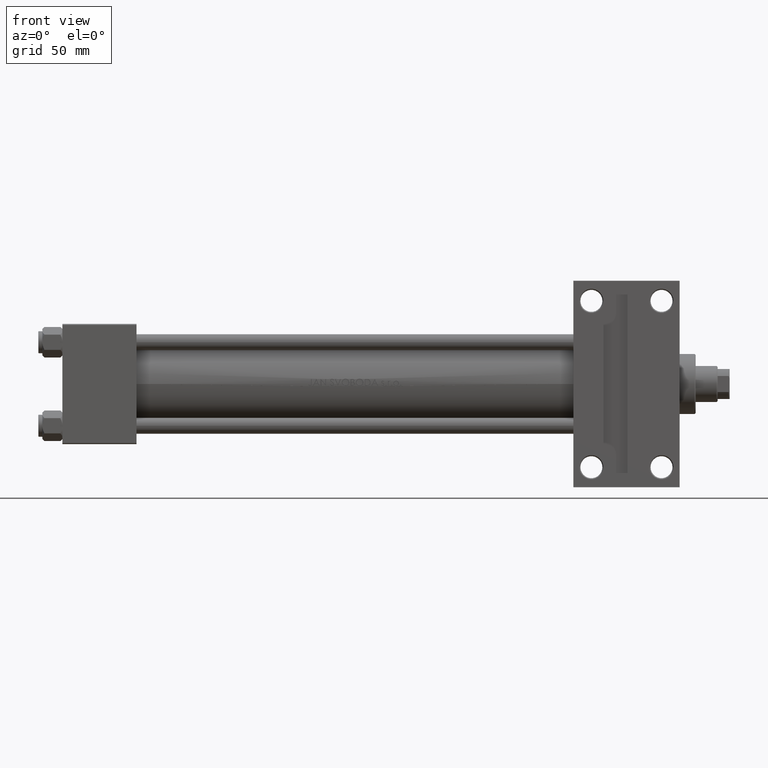
[diagram: clean part render]
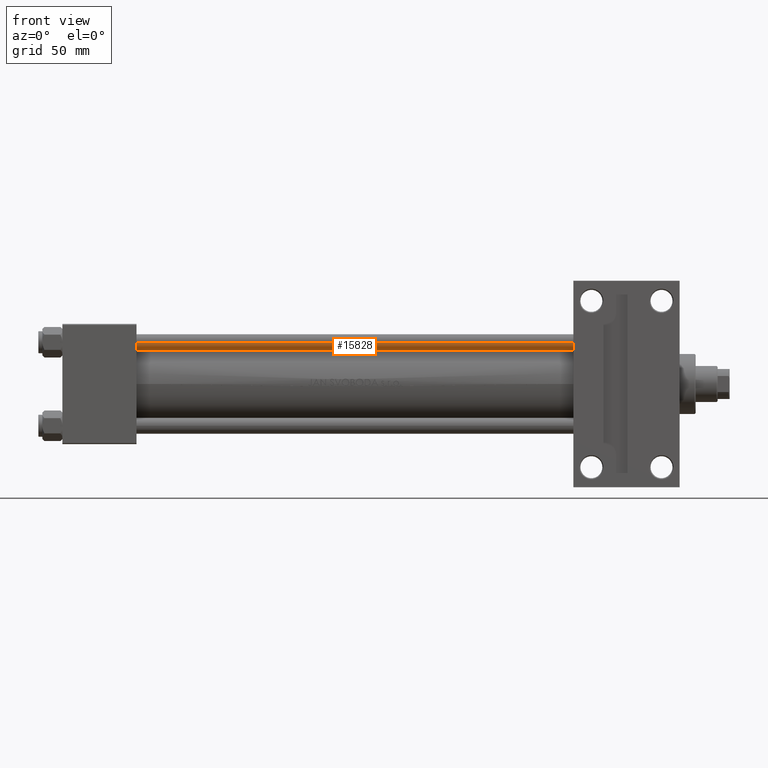
[diagram: same view with one face highlighted and labeled with its STEP entity id]
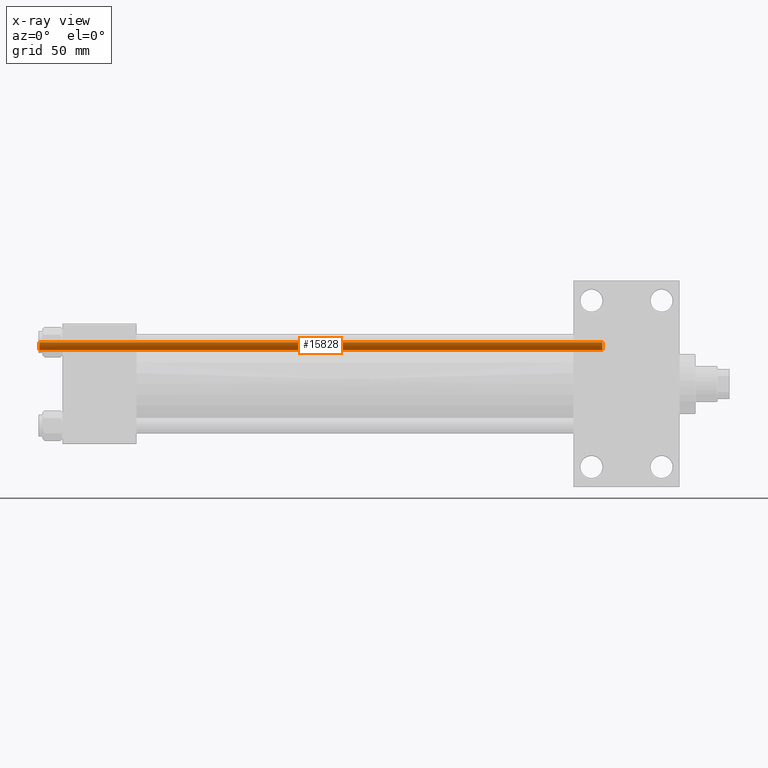
[diagram: x-ray of the same camera — body ghosted, the highlighted face saturated]
A machine part, front view. The second image highlights one B-rep face of the part: STEP entity #15828.
The next image is the same camera in x-ray: the body ghosted, the highlighted face saturated — about 0% of this face is hidden behind the body in this view.
In plain terms, the highlighted cylindrical surface (edge-blend (fillet) strip) has radius 4 mm, axis along (-1, 0, 0).
Its self-contained STEP definition (entity closure, byte-faithful):
#1460 = DIRECTION ( 'NONE',  ( 1.000000000000000000, 0.000000000000000000, 0.000000000000000000 ) ) ;
#2012 = VECTOR ( 'NONE', #28932, 1000.000000000000000 ) ;
#8051 = VERTEX_POINT ( 'NONE', #27177 ) ;
#8538 = CARTESIAN_POINT ( 'NONE',  ( 4.000000000000000000, 4.898587196589412829E-16, 281.5000000000000000 ) ) ;
#8824 = ORIENTED_EDGE ( 'NONE', *, *, #22101, .T. ) ;
#9134 = ORIENTED_EDGE ( 'NONE', *, *, #17937, .F. ) ;
#11052 = DIRECTION ( 'NONE',  ( -0.000000000000000000, -0.000000000000000000, -1.000000000000000000 ) ) ;
#13973 = CARTESIAN_POINT ( 'NONE',  ( -4.000000000000000000, 0.000000000000000000, 0.5000000000000559552 ) ) ;
#14753 = CARTESIAN_POINT ( 'NONE',  ( 0.000000000000000000, 0.000000000000000000, 282.0000000000000000 ) ) ;
#15828 = ADVANCED_FACE ( 'NONE', ( #44590 ), #22137, .T. ) ;
#17831 = LINE ( 'NONE', #25230, #2012 ) ;
#17937 = EDGE_CURVE ( 'NONE', #8051, #32412, #20787, .T. ) ;
#20174 = DIRECTION ( 'NONE',  ( -0.000000000000000000, -0.000000000000000000, 1.000000000000000000 ) ) ;
#20787 = LINE ( 'NONE', #35848, #37940 ) ;
#20835 = VERTEX_POINT ( 'NONE', #26588 ) ;
#22101 = EDGE_CURVE ( 'NONE', #20835, #32412, #28486, .T. ) ;
#22137 = CYLINDRICAL_SURFACE ( 'NONE', #25274, 4.000000000000000000 ) ;
#25230 = CARTESIAN_POINT ( 'NONE',  ( 4.000000000000000000, 4.898587196589412829E-16, 282.0000000000000000 ) ) ;
#25274 = AXIS2_PLACEMENT_3D ( 'NONE', #14753, #11052, #26063 ) ;
#26063 = DIRECTION ( 'NONE',  ( -1.000000000000000000, 0.000000000000000000, 0.000000000000000000 ) ) ;
#26588 = CARTESIAN_POINT ( 'NONE',  ( 4.000000000000000000, 4.898587196589412829E-16, 0.5000000000000559552 ) ) ;
#27122 = AXIS2_PLACEMENT_3D ( 'NONE', #46377, #39225, #31566 ) ;
#27177 = CARTESIAN_POINT ( 'NONE',  ( -4.000000000000000000, 0.000000000000000000, 281.5000000000000000 ) ) ;
#27216 = EDGE_CURVE ( 'NONE', #8051, #42656, #42074, .T. ) ;
#28486 = CIRCLE ( 'NONE', #34814, 4.000000000000000000 ) ;
#28932 = DIRECTION ( 'NONE',  ( -0.000000000000000000, -0.000000000000000000, -1.000000000000000000 ) ) ;
#31566 = DIRECTION ( 'NONE',  ( 1.000000000000000000, 0.000000000000000000, 0.000000000000000000 ) ) ;
#32389 = DIRECTION ( 'NONE',  ( -0.000000000000000000, -0.000000000000000000, -1.000000000000000000 ) ) ;
#32412 = VERTEX_POINT ( 'NONE', #13973 ) ;
#33501 = ORIENTED_EDGE ( 'NONE', *, *, #45645, .T. ) ;
#34814 = AXIS2_PLACEMENT_3D ( 'NONE', #39167, #20174, #1460 ) ;
#35317 = EDGE_LOOP ( 'NONE', ( #37739, #33501, #8824, #9134 ) ) ;
#35848 = CARTESIAN_POINT ( 'NONE',  ( -4.000000000000000000, 0.000000000000000000, 282.0000000000000000 ) ) ;
#37739 = ORIENTED_EDGE ( 'NONE', *, *, #27216, .T. ) ;
#37940 = VECTOR ( 'NONE', #32389, 1000.000000000000000 ) ;
#39167 = CARTESIAN_POINT ( 'NONE',  ( 0.000000000000000000, 0.000000000000000000, 0.5000000000000559552 ) ) ;
#39225 = DIRECTION ( 'NONE',  ( 0.000000000000000000, 0.000000000000000000, -1.000000000000000000 ) ) ;
#42074 = CIRCLE ( 'NONE', #27122, 4.000000000000000000 ) ;
#42656 = VERTEX_POINT ( 'NONE', #8538 ) ;
#44590 = FACE_OUTER_BOUND ( 'NONE', #35317, .T. ) ;
#45645 = EDGE_CURVE ( 'NONE', #42656, #20835, #17831, .T. ) ;
#46377 = CARTESIAN_POINT ( 'NONE',  ( 0.000000000000000000, 0.000000000000000000, 281.5000000000000000 ) ) ;